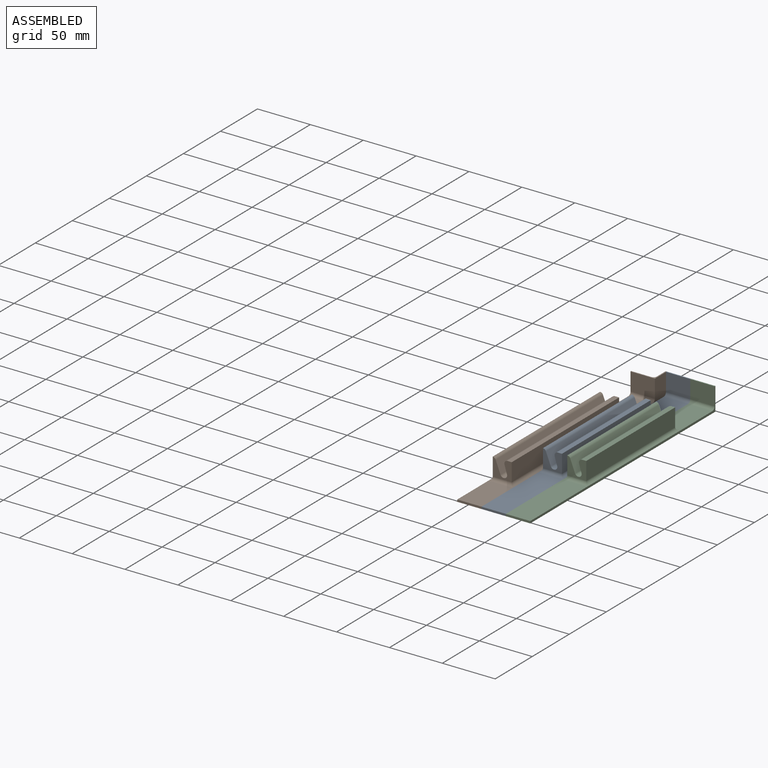
[diagram: assembled view]
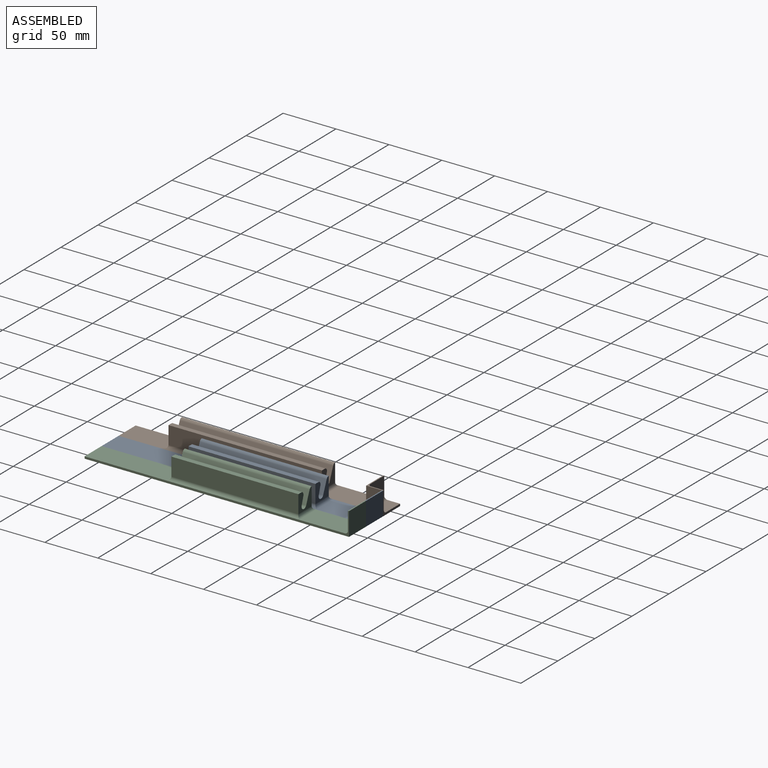
[diagram: assembled view, second angle]
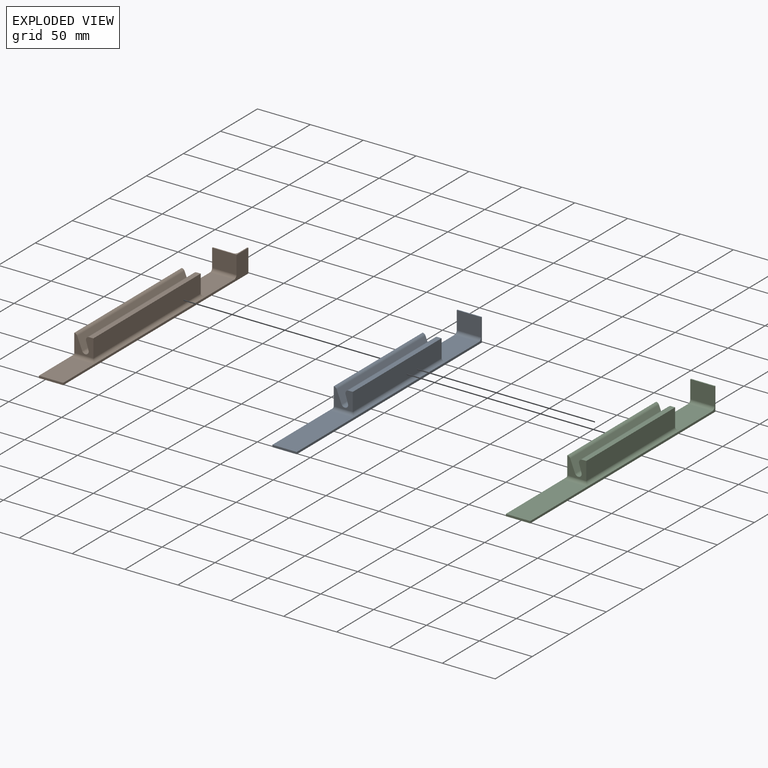
[diagram: exploded view]
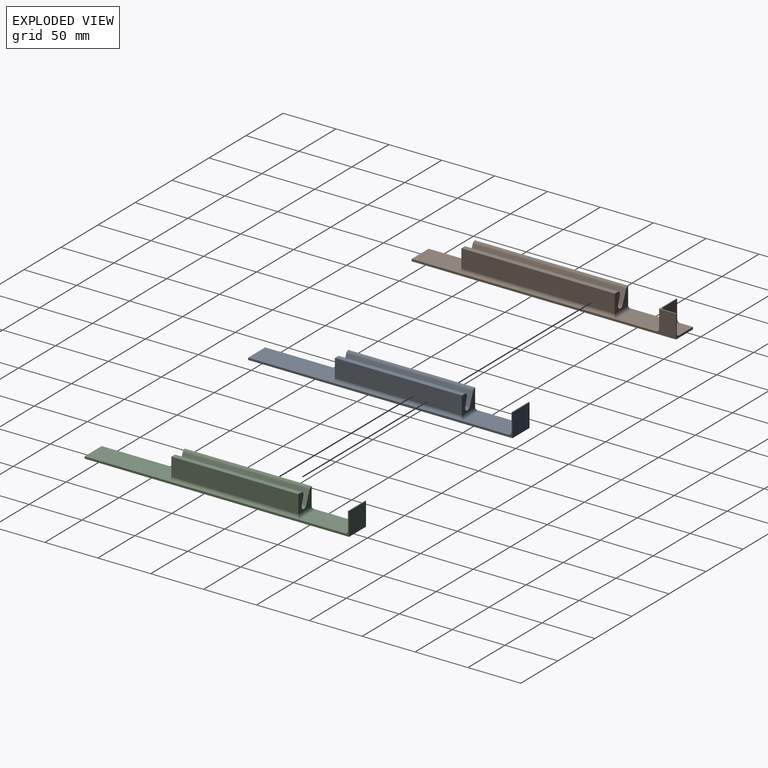
[diagram: exploded view, second angle]
ASSEMBLY  parts=3 mates=2
PART A: 26 faces, bbox 23x250x22 mm
  f0: plane 77x23mm, normal (0,0,1), area 1771mm2, adj f6,f7,f8,f22
  f1: plane 43x23mm, normal (0,0,1), area 989mm2, adj f6,f8,f19,f23
  f2: plane 120x3.97mm, normal (0,0,1), area 476.1mm2, adj f3,f4,f11,f18
  f3: plane 18x17mm, normal (0,1,0), area 194mm2, adj f2,f10,f11,f12,f13,f14,f17,f18
  f4: plane 18x17mm, normal (0,-1,0), area 194mm2, adj f2,f10,f11,f12,f13,f14,f17,f18
  f5: plane 23x22mm, normal (0,1,0), area 506mm2, adj f6,f8,f9,f16
  f6: plane 250x22mm, normal (-1,0,0), area 521.9mm2, adj f0,f1,f5,f7,f9,f15,f16,f20
  f7: plane 23x2mm, normal (0,-1,0), area 46mm2, adj f0,f6,f8,f9
  f8: plane 250x22mm, normal (1,0,0), area 521.9mm2, adj f0,f1,f5,f7,f9,f15,f16,f21
  f9: plane 250x23mm, normal (0,0,-1), area 5750mm2, adj f5,f6,f7,f8
  f10: plane 120.01x17.17mm, normal (-1,0,0), area 2060.6mm2, adj f3,f4,f17,f19,f20,f22
  f11: plane 120x17mm, normal (1,0,0), area 2040mm2, adj f2,f3,f4,f21
  f12: plane 120x11.73mm, normal (0.93,0,0.37), area 1515.8mm2, adj f3,f4,f17,f24
  f13: plane 120x0.39mm, normal (0,0,1), area 46.4mm2, adj f3,f4,f24,f25
  f14: plane 120x7.78mm, normal (-0.96,0,-0.29), area 974.2mm2, adj f3,f4,f18,f25
  f15: plane 23x17mm, normal (0,-1,0), area 391mm2, adj f6,f8,f16,f23
  f16: plane 23x1mm, normal (0,0,1), area 23mm2, adj f5,f6,f8,f15
  f17: cylinder r=3mm len=120mm, axis (0,1,0), area 424.8mm2, adj f3,f4,f10,f12
  f18: cylinder r=3mm len=120mm, axis (0,-1,0), area 670.4mm2, adj f2,f3,f4,f14
  f19: cylinder r=3mm len=23mm, axis (-1,0,0), area 93.9mm2, adj f1,f3,f10,f20,f21
  f20: cylinder r=3mm len=126mm, axis (0,1,0), area 449.7mm2, adj f6,f10,f19,f22
  f21: cylinder r=3mm len=126mm, axis (0,1,0), area 575.8mm2, adj f8,f11,f19,f22
  f22: cylinder r=3mm len=23mm, axis (1,0,0), area 93.9mm2, adj f0,f4,f10,f20,f21
  f23: cylinder r=3mm len=23mm, axis (1,0,0), area 108.4mm2, adj f1,f6,f8,f15
  f24: cylinder r=3mm len=120mm, axis (0,1,0), area 428.5mm2, adj f3,f4,f12,f13
  f25: cylinder r=3mm len=120mm, axis (0,-1,0), area 670.4mm2, adj f3,f4,f13,f14
PART B: 33 faces, bbox 23x250x22 mm
  f0: plane 19x12mm, normal (0,0,1), area 228mm2, adj f6,f7,f28,f29
  f1: plane 42x23mm, normal (0,0,1), area 966mm2, adj f7,f8,f9,f21
  f2: plane 145x3.97mm, normal (0,0,1), area 575.3mm2, adj f3,f4,f12,f17
  f3: plane 18x17mm, normal (0,1,0), area 194mm2, adj f2,f11,f12,f13,f14,f15,f16,f17
  f4: plane 18x17mm, normal (0,-1,0), area 194mm2, adj f2,f11,f12,f13,f14,f15,f16,f17
  f5: plane 38x23mm, normal (0,0,1), area 874mm2, adj f7,f9,f18,f32
  f6: plane 23x22mm, normal (0,1,0), area 67.9mm2, adj f0,f7,f9,f10,f25,f27,f29
  f7: plane 250x22mm, normal (-1,0,0), area 523.9mm2, adj f0,f1,f5,f6,f8,f10,f19,f24
  f8: plane 23x2mm, normal (0,-1,0), area 46mm2, adj f1,f7,f9,f10
  f9: plane 250x22mm, normal (1,0,0), area 821.9mm2, adj f1,f5,f6,f8,f10,f20,f24,f27
  f10: plane 250x23mm, normal (0,0,-1), area 5750mm2, adj f6,f7,f8,f9
  f11: plane 145.01x17.17mm, normal (-1,0,0), area 2489.9mm2, adj f3,f4,f16,f18,f19,f21
  f12: plane 145x17mm, normal (1,0,0), area 2465mm2, adj f2,f3,f4,f20
  f13: plane 145x11.73mm, normal (0.93,0,0.37), area 1831.6mm2, adj f3,f4,f16,f22
  f14: plane 145x0.39mm, normal (0,0,1), area 56.1mm2, adj f3,f4,f22,f23
  f15: plane 145x7.78mm, normal (-0.96,0,-0.29), area 1177.2mm2, adj f3,f4,f17,f23
  f16: cylinder r=3mm len=145mm, axis (0,1,0), area 513.3mm2, adj f3,f4,f11,f13
  f17: cylinder r=3mm len=145mm, axis (0,-1,0), area 810.1mm2, adj f2,f3,f4,f15
  f18: cylinder r=3mm len=23mm, axis (-1,0,0), area 93.9mm2, adj f3,f5,f11,f19,f20
  f19: cylinder r=3mm len=151mm, axis (0,1,0), area 542mm2, adj f7,f11,f18,f21
  f20: cylinder r=3mm len=151mm, axis (0,1,0), area 693.6mm2, adj f9,f12,f18,f21
  f21: cylinder r=3mm len=23mm, axis (1,0,0), area 93.9mm2, adj f1,f4,f11,f19,f20
  f22: cylinder r=3mm len=145mm, axis (0,1,0), area 517.8mm2, adj f3,f4,f13,f14
  f23: cylinder r=3mm len=145mm, axis (0,-1,0), area 810.1mm2, adj f3,f4,f14,f15
  f24: plane 23x17mm, normal (0,-1,0), area 391mm2, adj f7,f9,f27,f32
  f25: plane 17x12mm, normal (-1,0,0), area 204mm2, adj f6,f27,f29,f31
  f26: plane 19x17mm, normal (0,1,0), area 323mm2, adj f7,f27,f28,f31
  f27: plane 23x16mm, normal (0,0,1), area 39.9mm2, adj f6,f7,f9,f24,f25,f26,f31
  f28: cylinder r=3mm len=19mm, axis (-1,0,0), area 89.5mm2, adj f0,f7,f26,f30
  f29: cylinder r=3mm len=12mm, axis (0,-1,0), area 56.5mm2, adj f0,f6,f25,f30
  f30: sphere r=3mm, area 14.1mm2, adj f28,f29,f31
  f31: cylinder r=3mm len=17mm, axis (0,0,1), area 80.1mm2, adj f25,f26,f27,f30
  f32: cylinder r=3mm len=23mm, axis (1,0,0), area 108.4mm2, adj f5,f7,f9,f24
PART C: same geometry as A
PLACE A t=(-71.35,13.57,-25.23)mm
PLACE B t=(-94.35,13.57,-25.23)mm
PLACE C t=(-48.35,13.57,-25.23)mm
MATE fastened C.f6 <-> A.f8  axis (-1,0,0) through (-109.36,-30.96,-23.23)mm
MATE fastened A.f6 <-> B.f9  axis (-1,0,0) through (-132.36,142.04,-25.23)mm
